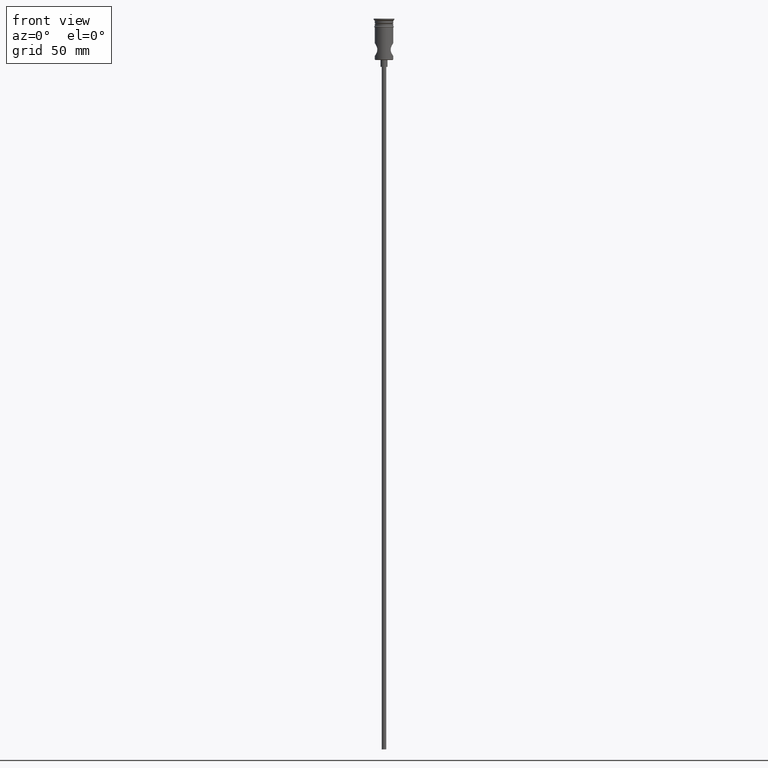
[diagram: clean part render]
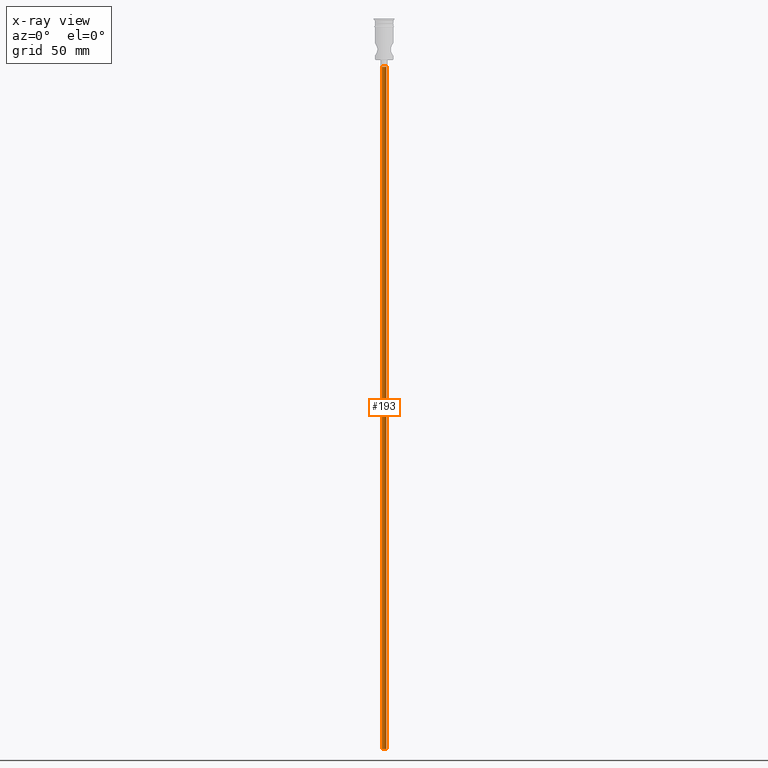
[diagram: x-ray — body ghosted, one internal face saturated and labeled with its STEP entity id]
A machine part, front view, then the same camera in x-ray: the body is ghosted and one INTERNAL B-rep face — a face not visible from any outside direction — is saturated and labeled: STEP entity #193.
In plain terms, the highlighted cylindrical surface (edge-blend (fillet) strip) has radius 1 mm, axis along (-0, -0, 1).
Its self-contained STEP definition (entity closure, byte-faithful):
#2 = FACE_OUTER_BOUND ( 'NONE', #1162, .T. ) ;
#10 = CIRCLE ( 'NONE', #76, 0.9999999999999997780 ) ;
#66 = EDGE_CURVE ( 'NONE', #255, #646, #951, .T. ) ;
#76 = AXIS2_PLACEMENT_3D ( 'NONE', #1032, #926, #1345 ) ;
#93 = CYLINDRICAL_SURFACE ( 'NONE', #1319, 0.9999999999999997780 ) ;
#125 = CARTESIAN_POINT ( 'NONE',  ( 0.9999999999999997780, 0.000000000000000000, -318.0000000000000000 ) ) ;
#159 = VERTEX_POINT ( 'NONE', #125 ) ;
#166 = EDGE_CURVE ( 'NONE', #159, #815, #858, .T. ) ;
#185 = VECTOR ( 'NONE', #814, 1000.000000000000000 ) ;
#193 = ADVANCED_FACE ( 'NONE', ( #2 ), #93, .T. ) ;
#212 = DIRECTION ( 'NONE',  ( -1.000000000000000000, 0.000000000000000000, 0.000000000000000000 ) ) ;
#223 = DIRECTION ( 'NONE',  ( -0.000000000000000000, -0.000000000000000000, 1.000000000000000000 ) ) ;
#255 = VERTEX_POINT ( 'NONE', #588 ) ;
#257 = EDGE_CURVE ( 'NONE', #646, #815, #10, .T. ) ;
#321 = EDGE_CURVE ( 'NONE', #255, #159, #892, .T. ) ;
#369 = CARTESIAN_POINT ( 'NONE',  ( 0.9999999999999997780, 0.000000000000000000, -318.0000000000000000 ) ) ;
#443 = CARTESIAN_POINT ( 'NONE',  ( 0.000000000000000000, 0.000000000000000000, -318.0000000000000000 ) ) ;
#449 = DIRECTION ( 'NONE',  ( 1.000000000000000000, 0.000000000000000000, 0.000000000000000000 ) ) ;
#538 = CARTESIAN_POINT ( 'NONE',  ( 0.000000000000000000, 0.000000000000000000, -318.0000000000000000 ) ) ;
#547 = ORIENTED_EDGE ( 'NONE', *, *, #321, .F. ) ;
#564 = CARTESIAN_POINT ( 'NONE',  ( 0.9999999999999997780, 0.000000000000000000, -20.99999999999999645 ) ) ;
#588 = CARTESIAN_POINT ( 'NONE',  ( -0.9999999999999997780, 1.224646799147352961E-16, -318.0000000000000000 ) ) ;
#646 = VERTEX_POINT ( 'NONE', #1418 ) ;
#704 = DIRECTION ( 'NONE',  ( -0.000000000000000000, -0.000000000000000000, 1.000000000000000000 ) ) ;
#724 = CARTESIAN_POINT ( 'NONE',  ( -0.9999999999999997780, 1.224646799147352961E-16, -318.0000000000000000 ) ) ;
#743 = AXIS2_PLACEMENT_3D ( 'NONE', #538, #970, #212 ) ;
#809 = ORIENTED_EDGE ( 'NONE', *, *, #166, .F. ) ;
#814 = DIRECTION ( 'NONE',  ( -0.000000000000000000, -0.000000000000000000, 1.000000000000000000 ) ) ;
#815 = VERTEX_POINT ( 'NONE', #564 ) ;
#858 = LINE ( 'NONE', #369, #185 ) ;
#892 = CIRCLE ( 'NONE', #743, 0.9999999999999997780 ) ;
#926 = DIRECTION ( 'NONE',  ( 0.000000000000000000, 0.000000000000000000, -1.000000000000000000 ) ) ;
#951 = LINE ( 'NONE', #724, #1383 ) ;
#970 = DIRECTION ( 'NONE',  ( 0.000000000000000000, 0.000000000000000000, -1.000000000000000000 ) ) ;
#1032 = CARTESIAN_POINT ( 'NONE',  ( 0.000000000000000000, 0.000000000000000000, -20.99999999999999645 ) ) ;
#1033 = ORIENTED_EDGE ( 'NONE', *, *, #257, .T. ) ;
#1162 = EDGE_LOOP ( 'NONE', ( #547, #1276, #1033, #809 ) ) ;
#1276 = ORIENTED_EDGE ( 'NONE', *, *, #66, .T. ) ;
#1319 = AXIS2_PLACEMENT_3D ( 'NONE', #443, #223, #449 ) ;
#1345 = DIRECTION ( 'NONE',  ( -1.000000000000000000, 0.000000000000000000, 0.000000000000000000 ) ) ;
#1383 = VECTOR ( 'NONE', #704, 1000.000000000000000 ) ;
#1418 = CARTESIAN_POINT ( 'NONE',  ( -0.9999999999999997780, 1.224646799147352961E-16, -20.99999999999999645 ) ) ;